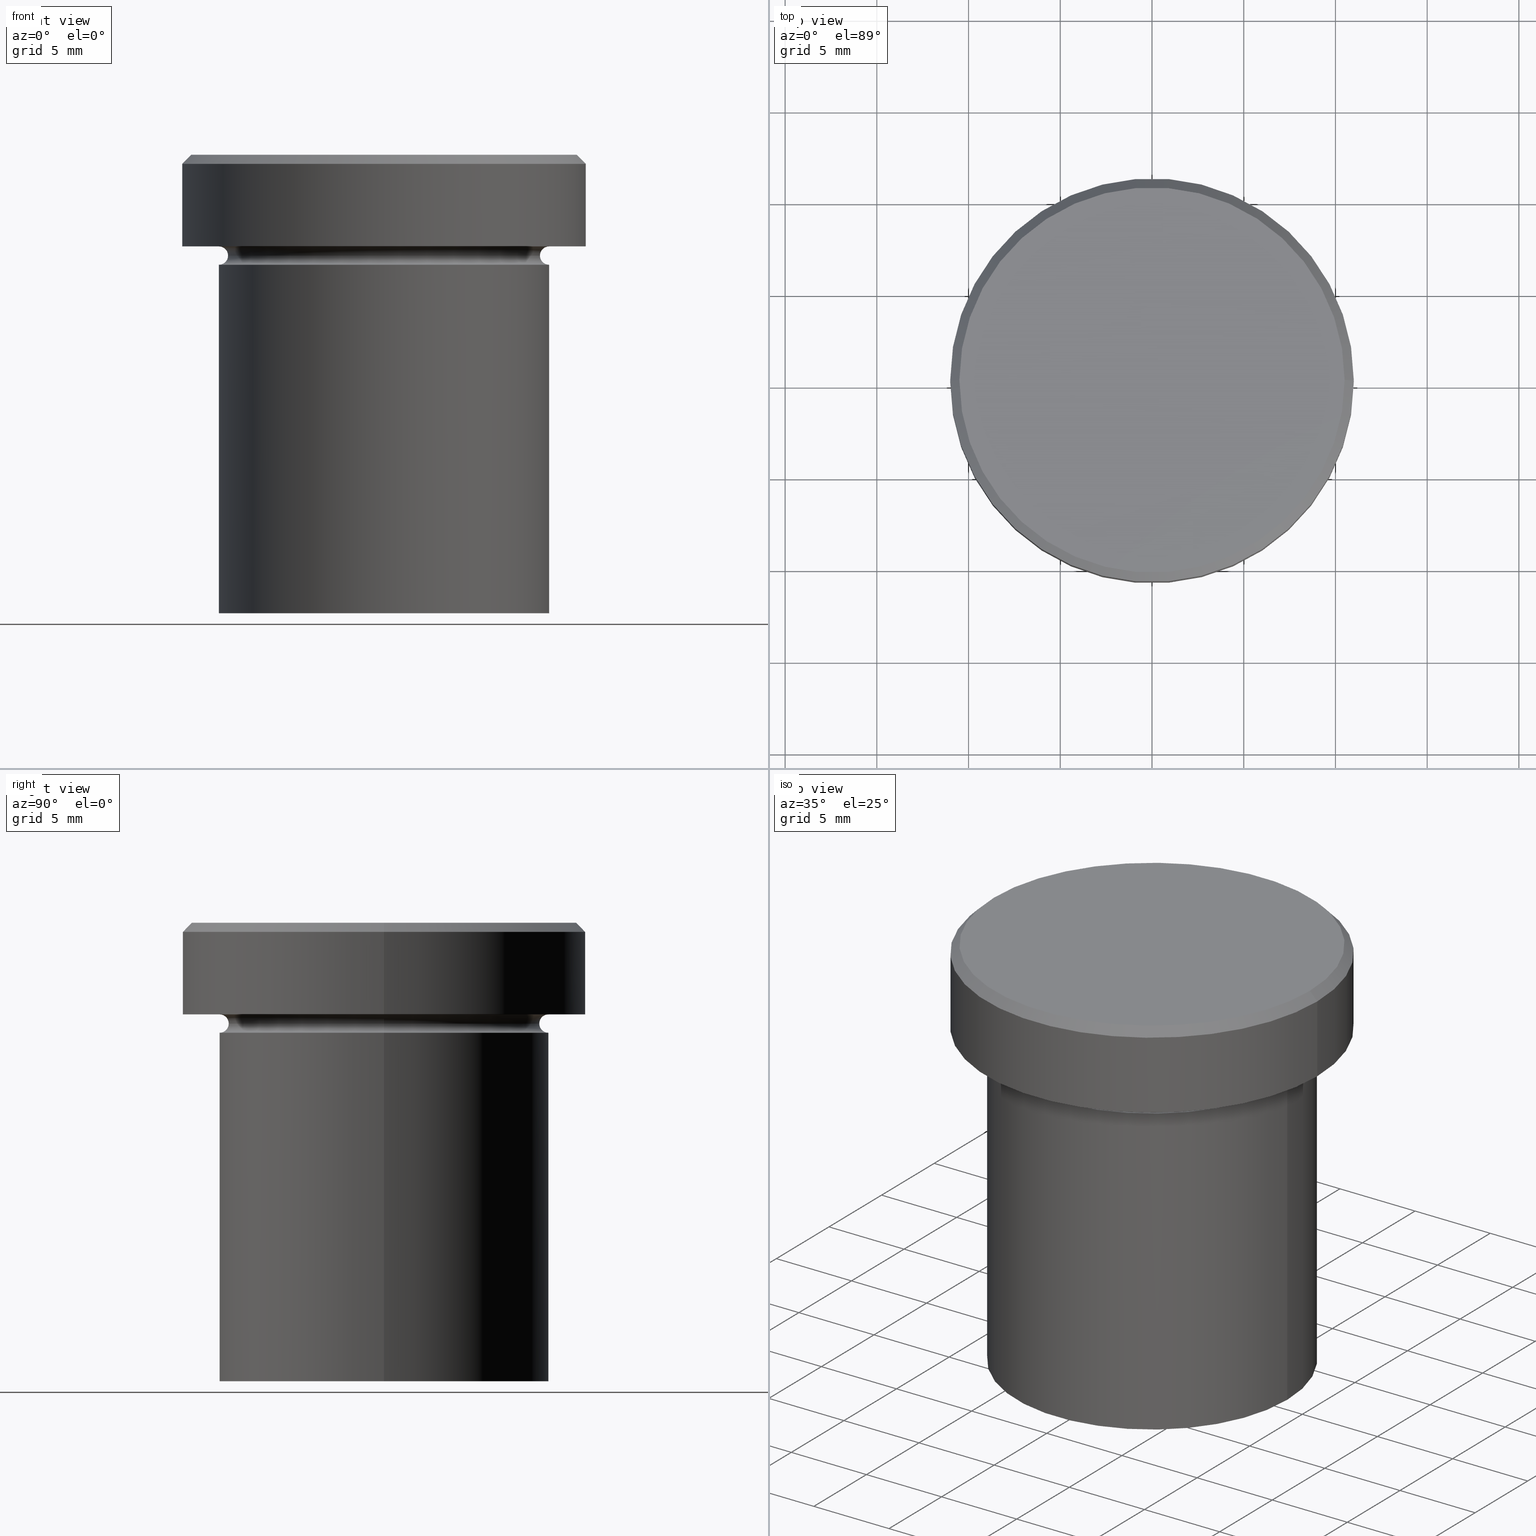
[diagram: canonical four-view strip — front | top / right | iso, engineering-drawing reading convention]
A machine part, canonical four-view strip (front | top / right | iso — engineering-drawing reading convention). The complete STEP part file that produces these views, byte-faithful:
ISO-10303-21;
HEADER;
FILE_DESCRIPTION (( 'STEP AP203' ),
    '1' );
FILE_NAME ('a1ef.STEP',
    '2024-01-02T21:51:22',
    ( '' ),
    ( '' ),
    'SwSTEP 2.0',
    'SolidWorks 2019',
    '' );
FILE_SCHEMA (( 'CONFIG_CONTROL_DESIGN' ));
ENDSEC;

DATA;
#1 = DIRECTION ( 'NONE',  ( 1.000000000000000000, 0.000000000000000000, 0.000000000000000000 ) ) ;
#2 = AXIS2_PLACEMENT_3D ( 'NONE', #397, #270, #399 ) ;
#3 = ORIENTED_EDGE ( 'NONE', *, *, #233, .T. ) ;
#4 = CYLINDRICAL_SURFACE ( 'NONE', #222, 9.000000000000000000 ) ;
#5 = DIRECTION ( 'NONE',  ( 0.000000000000000000, 0.000000000000000000, -1.000000000000000000 ) ) ;
#6 = DIRECTION ( 'NONE',  ( -0.000000000000000000, -0.000000000000000000, 1.000000000000000000 ) ) ;
#7 = EDGE_CURVE ( 'NONE', #39, #184, #30, .T. ) ;
#8 = AXIS2_PLACEMENT_3D ( 'NONE', #114, #392, #141 ) ;
#9 = LOCAL_TIME ( 22, 51, 22.00000000000000000, #245 ) ;
#10 = DIRECTION ( 'NONE',  ( -1.000000000000000000, 1.224646799147353454E-16, 0.000000000000000000 ) ) ;
#11 = LINE ( 'NONE', #144, #239 ) ;
#12 = EDGE_CURVE ( 'NONE', #157, #373, #400, .T. ) ;
#13 = PRODUCT_DEFINITION_SHAPE ( 'NONE', 'NONE',  #388 ) ;
#14 = CARTESIAN_POINT ( 'NONE',  ( 0.000000000000000000, 0.000000000000000000, -5.500000000000000000 ) ) ;
#15 = DIRECTION ( 'NONE',  ( -0.000000000000000000, -0.000000000000000000, 1.000000000000000000 ) ) ;
#16 = DIRECTION ( 'NONE',  ( 0.000000000000000000, 0.000000000000000000, -1.000000000000000000 ) ) ;
#17 = CARTESIAN_POINT ( 'NONE',  ( 0.000000000000000000, 0.000000000000000000, 0.000000000000000000 ) ) ;
#18 = COORDINATED_UNIVERSAL_TIME_OFFSET ( 1, 0, .AHEAD. ) ;
#19 = EDGE_CURVE ( 'NONE', #398, #39, #117, .T. ) ;
#20 = ORIENTED_EDGE ( 'NONE', *, *, #150, .F. ) ;
#21 = VERTEX_POINT ( 'NONE', #390 ) ;
#22 = DATE_AND_TIME ( #308, #9 ) ;
#23 =( LENGTH_UNIT ( ) NAMED_UNIT ( * ) SI_UNIT ( .MILLI., .METRE. ) );
#24 = CIRCLE ( 'NONE', #2, 11.00000000000000178 ) ;
#25 = FACE_OUTER_BOUND ( 'NONE', #359, .T. ) ;
#26 = AXIS2_PLACEMENT_3D ( 'NONE', #88, #292, #50 ) ;
#27 = TOROIDAL_SURFACE ( 'NONE', #302, 9.000000000000000000, 0.5000000000000000000 ) ;
#28 = EDGE_LOOP ( 'NONE', ( #63, #131, #327, #194 ) ) ;
#29 = APPROVAL_DATE_TIME ( #65, #31 ) ;
#30 = LINE ( 'NONE', #252, #153 ) ;
#31 = APPROVAL ( #251, 'NEUR�EN�' ) ;
#32 = VERTEX_POINT ( 'NONE', #200 ) ;
#33 = DIRECTION ( 'NONE',  ( -0.000000000000000000, -0.000000000000000000, 1.000000000000000000 ) ) ;
#34 = CC_DESIGN_APPROVAL ( #31, ( #46 ) ) ;
#35 = ORIENTED_EDGE ( 'NONE', *, *, #204, .T. ) ;
#36 = ORIENTED_EDGE ( 'NONE', *, *, #7, .T. ) ;
#37 = CARTESIAN_POINT ( 'NONE',  ( 0.000000000000000000, 0.000000000000000000, -0.4999999999999882871 ) ) ;
#38 = ORIENTED_EDGE ( 'NONE', *, *, #134, .F. ) ;
#39 = VERTEX_POINT ( 'NONE', #393 ) ;
#40 = ADVANCED_FACE ( 'NONE', ( #169 ), #4, .T. ) ;
#41 = ORIENTED_EDGE ( 'NONE', *, *, #93, .F. ) ;
#42 = DIRECTION ( 'NONE',  ( 1.000000000000000000, 0.000000000000000000, 0.000000000000000000 ) ) ;
#43 = AXIS2_PLACEMENT_3D ( 'NONE', #147, #339, #372 ) ;
#44 = DIRECTION ( 'NONE',  ( -0.000000000000000000, -0.000000000000000000, 1.000000000000000000 ) ) ;
#45 = CIRCLE ( 'NONE', #119, 0.5000000000000004441 ) ;
#46 = SECURITY_CLASSIFICATION ( '', '', #128 ) ;
#47 = APPROVAL_PERSON_ORGANIZATION ( #191, #31, #409 ) ;
#48 = CARTESIAN_POINT ( 'NONE',  ( 0.000000000000000000, 0.000000000000000000, 0.000000000000000000 ) ) ;
#49 = CARTESIAN_POINT ( 'NONE',  ( 0.000000000000000000, 0.000000000000000000, -5.000000000000000000 ) ) ;
#50 = DIRECTION ( 'NONE',  ( 1.000000000000000000, 0.000000000000000000, 0.000000000000000000 ) ) ;
#51 = CARTESIAN_POINT ( 'NONE',  ( -9.000000000000000000, 0.000000000000000000, -4.999999999999999112 ) ) ;
#52 = CIRCLE ( 'NONE', #342, 9.000000000000000000 ) ;
#53 = VERTEX_POINT ( 'NONE', #55 ) ;
#54 = CALENDAR_DATE ( 2024, 2, 1 ) ;
#55 = CARTESIAN_POINT ( 'NONE',  ( 9.000000000000000000, 0.000000000000000000, -6.000000000000000000 ) ) ;
#56 = CARTESIAN_POINT ( 'NONE',  ( 9.000000000000000000, 0.000000000000000000, -5.500000000000000000 ) ) ;
#57 = CC_DESIGN_PERSON_AND_ORGANIZATION_ASSIGNMENT ( #271, #179, ( #368 ) ) ;
#58 = APPROVAL_DATE_TIME ( #241, #116 ) ;
#59 = APPROVAL_STATUS ( 'not_yet_approved' ) ;
#60 = EDGE_LOOP ( 'NONE', ( #195, #3, #258, #324 ) ) ;
#61 = AXIS2_PLACEMENT_3D ( 'NONE', #138, #112, #235 ) ;
#62 = APPROVAL_PERSON_ORGANIZATION ( #120, #142, #126 ) ;
#63 = ORIENTED_EDGE ( 'NONE', *, *, #278, .F. ) ;
#64 = ADVANCED_FACE ( 'NONE', ( #364 ), #336, .T. ) ;
#65 = DATE_AND_TIME ( #66, #220 ) ;
#66 = CALENDAR_DATE ( 2024, 2, 1 ) ;
#67 = AXIS2_PLACEMENT_3D ( 'NONE', #234, #174, #297 ) ;
#68 = APPROVAL_PERSON_ORGANIZATION ( #123, #116, #242 ) ;
#69 = ORIENTED_EDGE ( 'NONE', *, *, #278, .T. ) ;
#70 = EDGE_CURVE ( 'NONE', #398, #21, #310, .T. ) ;
#71 = EDGE_LOOP ( 'NONE', ( #127, #217, #376, #100 ) ) ;
#72 = CARTESIAN_POINT ( 'NONE',  ( -9.000000000000000000, 1.102182119232617714E-15, -25.00000000000000000 ) ) ;
#73 = EDGE_LOOP ( 'NONE', ( #208, #78 ) ) ;
#74 = ORIENTED_EDGE ( 'NONE', *, *, #318, .T. ) ;
#75 = AXIS2_PLACEMENT_3D ( 'NONE', #118, #238, #363 ) ;
#76 = LINE ( 'NONE', #171, #307 ) ;
#77 = EDGE_CURVE ( 'NONE', #404, #373, #254, .T. ) ;
#78 = ORIENTED_EDGE ( 'NONE', *, *, #233, .F. ) ;
#79 = DIRECTION ( 'NONE',  ( 1.000000000000000000, 0.000000000000000000, 0.000000000000000000 ) ) ;
#80 = EDGE_LOOP ( 'NONE', ( #105, #69, #346, #20 ) ) ;
#81 = CARTESIAN_POINT ( 'NONE',  ( 8.499999999999998224, 0.000000000000000000, -5.500000000000000000 ) ) ;
#82 = DIRECTION ( 'NONE',  ( -1.000000000000000000, 0.000000000000000000, 0.000000000000000000 ) ) ;
#83 = DIRECTION ( 'NONE',  ( 0.000000000000000000, -1.000000000000000000, 0.000000000000000000 ) ) ;
#84 = VERTEX_POINT ( 'NONE', #107 ) ;
#85 = AXIS2_PLACEMENT_3D ( 'NONE', #269, #367, #90 ) ;
#86 = VECTOR ( 'NONE', #121, 1000.000000000000114 ) ;
#87 = DIRECTION ( 'NONE',  ( 1.000000000000000000, 0.000000000000000000, 0.000000000000000000 ) ) ;
#88 = CARTESIAN_POINT ( 'NONE',  ( 0.000000000000000000, 0.000000000000000000, -5.500000000000000000 ) ) ;
#89 = CARTESIAN_POINT ( 'NONE',  ( 0.000000000000000000, 0.000000000000000000, -5.500000000000000000 ) ) ;
#90 = DIRECTION ( 'NONE',  ( -1.000000000000000000, 0.000000000000000000, 0.000000000000000000 ) ) ;
#91 = DIRECTION ( 'NONE',  ( 0.000000000000000000, 0.000000000000000000, -1.000000000000000000 ) ) ;
#92 = TOROIDAL_SURFACE ( 'NONE', #262, 9.000000000000000000, 0.5000000000000000000 ) ;
#93 = EDGE_CURVE ( 'NONE', #32, #21, #76, .T. ) ;
#94 = ORGANIZATION ( 'NEUR�EN�', 'NEUR�EN�', '' ) ;
#95 = CALENDAR_DATE ( 2024, 2, 1 ) ;
#96 = DIRECTION ( 'NONE',  ( 1.000000000000000000, 0.000000000000000000, 0.000000000000000000 ) ) ;
#97 = VERTEX_POINT ( 'NONE', #72 ) ;
#98 = PERSON_AND_ORGANIZATION_ROLE ( 'creator' ) ;
#99 = EDGE_CURVE ( 'NONE', #53, #347, #197, .T. ) ;
#100 = ORIENTED_EDGE ( 'NONE', *, *, #7, .F. ) ;
#101 = CARTESIAN_POINT ( 'NONE',  ( 9.000000000000000000, 1.102182119232617714E-15, -5.500000000000000000 ) ) ;
#102 = EDGE_CURVE ( 'NONE', #84, #53, #132, .T. ) ;
#103 = AXIS2_PLACEMENT_3D ( 'NONE', #228, #110, #291 ) ;
#104 = LOCAL_TIME ( 22, 51, 22.00000000000000000, #18 ) ;
#105 = ORIENTED_EDGE ( 'NONE', *, *, #382, .F. ) ;
#106 = ORIENTED_EDGE ( 'NONE', *, *, #380, .F. ) ;
#107 = CARTESIAN_POINT ( 'NONE',  ( 9.000000000000000000, 0.000000000000000000, -25.00000000000000000 ) ) ;
#108 = FACE_OUTER_BOUND ( 'NONE', #386, .T. ) ;
#109 = AXIS2_PLACEMENT_3D ( 'NONE', #199, #264, #333 ) ;
#110 = DIRECTION ( 'NONE',  ( -0.000000000000000000, -0.000000000000000000, 1.000000000000000000 ) ) ;
#111 = FACE_OUTER_BOUND ( 'NONE', #80, .T. ) ;
#112 = DIRECTION ( 'NONE',  ( -0.000000000000000000, -0.000000000000000000, 1.000000000000000000 ) ) ;
#113 = ORIENTED_EDGE ( 'NONE', *, *, #374, .F. ) ;
#114 = CARTESIAN_POINT ( 'NONE',  ( 0.000000000000000000, 11.00000000000000000, -5.000000000000000000 ) ) ;
#115 = ORIENTED_EDGE ( 'NONE', *, *, #348, .T. ) ;
#116 = APPROVAL ( #59, 'NEUR�EN�' ) ;
#117 = CIRCLE ( 'NONE', #377, 10.50000000000001243 ) ;
#118 = CARTESIAN_POINT ( 'NONE',  ( 0.000000000000000000, 0.000000000000000000, -5.500000000000000000 ) ) ;
#119 = AXIS2_PLACEMENT_3D ( 'NONE', #56, #83, #305 ) ;
#120 = PERSON_AND_ORGANIZATION ( #391, #94 ) ;
#121 = DIRECTION ( 'NONE',  ( 0.7071067811865474617, 8.659560562354932858E-17, -0.7071067811865474617 ) ) ;
#122 = UNCERTAINTY_MEASURE_WITH_UNIT (LENGTH_MEASURE( 1.000000000000000082E-05 ), #23, 'distance_accuracy_value', 'NONE');
#123 = PERSON_AND_ORGANIZATION ( #391, #94 ) ;
#124 = ADVANCED_FACE ( 'NONE', ( #25 ), #143, .T. ) ;
#125 = DIRECTION ( 'NONE',  ( 1.000000000000000000, 0.000000000000000000, 0.000000000000000000 ) ) ;
#126 = APPROVAL_ROLE ( '' ) ;
#127 = ORIENTED_EDGE ( 'NONE', *, *, #19, .F. ) ;
#128 = SECURITY_CLASSIFICATION_LEVEL ( 'unclassified' ) ;
#129 = ORIENTED_EDGE ( 'NONE', *, *, #284, .F. ) ;
#130 = CIRCLE ( 'NONE', #296, 11.00000000000000178 ) ;
#131 = ORIENTED_EDGE ( 'NONE', *, *, #321, .F. ) ;
#132 = LINE ( 'NONE', #255, #340 ) ;
#133 = AXIS2_PLACEMENT_3D ( 'NONE', #201, #6, #328 ) ;
#134 = EDGE_CURVE ( 'NONE', #21, #184, #24, .T. ) ;
#135 = ORIENTED_EDGE ( 'NONE', *, *, #70, .F. ) ;
#136 = CARTESIAN_POINT ( 'NONE',  ( 0.000000000000000000, 0.000000000000000000, 0.000000000000000000 ) ) ;
#137 = DIRECTION ( 'NONE',  ( 1.000000000000000000, 0.000000000000000000, 0.000000000000000000 ) ) ;
#138 = CARTESIAN_POINT ( 'NONE',  ( 0.000000000000000000, 0.000000000000000000, -6.000000000000000000 ) ) ;
#139 = PRODUCT_DEFINITION_FORMATION_WITH_SPECIFIED_SOURCE ( 'LIBOVOLN�', '', #368, .NOT_KNOWN. ) ;
#140 = ORIENTED_EDGE ( 'NONE', *, *, #12, .T. ) ;
#141 = DIRECTION ( 'NONE',  ( -1.000000000000000000, 0.000000000000000000, -0.000000000000000000 ) ) ;
#142 = APPROVAL ( #401, 'NEUR�EN�' ) ;
#143 = CYLINDRICAL_SURFACE ( 'NONE', #281, 11.00000000000000178 ) ;
#144 = CARTESIAN_POINT ( 'NONE',  ( -11.00000000000000178, 1.347111479062088602E-15, 0.000000000000000000 ) ) ;
#145 = AXIS2_PLACEMENT_3D ( 'NONE', #101, #165, #354 ) ;
#146 = FACE_BOUND ( 'NONE', #250, .T. ) ;
#147 = CARTESIAN_POINT ( 'NONE',  ( 0.000000000000000000, 9.000000000000000000, -25.00000000000000000 ) ) ;
#148 = ORIENTED_EDGE ( 'NONE', *, *, #380, .T. ) ;
#149 = CARTESIAN_POINT ( 'NONE',  ( 10.50000000000001243, 1.285879139104722408E-15, 0.000000000000000000 ) ) ;
#150 = EDGE_CURVE ( 'NONE', #157, #53, #45, .T. ) ;
#151 = PERSON_AND_ORGANIZATION_ROLE ( 'creator' ) ;
#152 = MECHANICAL_CONTEXT ( 'NONE', #192, 'mechanical' ) ;
#153 = VECTOR ( 'NONE', #379, 1000.000000000000114 ) ;
#154 = ORIENTED_EDGE ( 'NONE', *, *, #99, .F. ) ;
#155 = PERSON_AND_ORGANIZATION ( #391, #94 ) ;
#156 = EDGE_CURVE ( 'NONE', #347, #53, #230, .T. ) ;
#157 = VERTEX_POINT ( 'NONE', #81 ) ;
#158 = APPLICATION_PROTOCOL_DEFINITION ( 'international standard', 'config_control_design', 1994, #313 ) ;
#159 = CARTESIAN_POINT ( 'NONE',  ( -11.00000000000000178, 1.347111479062088602E-15, -0.4999999999999882871 ) ) ;
#160 = ORIENTED_EDGE ( 'NONE', *, *, #321, .T. ) ;
#161 = TOROIDAL_SURFACE ( 'NONE', #26, 9.000000000000000000, 0.5000000000000000000 ) ;
#162 = AXIS2_PLACEMENT_3D ( 'NONE', #190, #183, #216 ) ;
#163 = ORIENTED_EDGE ( 'NONE', *, *, #382, .T. ) ;
#164 = ORIENTED_EDGE ( 'NONE', *, *, #204, .F. ) ;
#165 = DIRECTION ( 'NONE',  ( -1.224646799147353207E-16, 1.000000000000000000, 0.000000000000000000 ) ) ;
#166 = EDGE_CURVE ( 'NONE', #274, #32, #224, .T. ) ;
#167 = CIRCLE ( 'NONE', #394, 0.5000000000000004441 ) ;
#168 = DIRECTION ( 'NONE',  ( 1.000000000000000000, 0.000000000000000000, 0.000000000000000000 ) ) ;
#169 = FACE_OUTER_BOUND ( 'NONE', #312, .T. ) ;
#170 = CARTESIAN_POINT ( 'NONE',  ( -9.000000000000000000, 1.102182119232617714E-15, 0.000000000000000000 ) ) ;
#171 = CARTESIAN_POINT ( 'NONE',  ( 11.00000000000000178, 0.000000000000000000, 0.000000000000000000 ) ) ;
#172 = CARTESIAN_POINT ( 'NONE',  ( -9.000000000000000000, 1.102182119232617714E-15, -6.000000000000000000 ) ) ;
#173 = CLOSED_SHELL ( 'NONE', ( #341, #408, #311, #40, #124, #64, #303, #352, #290, #175, #261, #272, #244 ) ) ;
#174 = DIRECTION ( 'NONE',  ( -0.000000000000000000, -0.000000000000000000, 1.000000000000000000 ) ) ;
#175 = ADVANCED_FACE ( 'NONE', ( #365 ), #182, .T. ) ;
#176 = CARTESIAN_POINT ( 'NONE',  ( 0.000000000000000000, 0.000000000000000000, 0.000000000000000000 ) ) ;
#177 = DIRECTION ( 'NONE',  ( 0.000000000000000000, 0.000000000000000000, -1.000000000000000000 ) ) ;
#178 = CARTESIAN_POINT ( 'NONE',  ( 0.000000000000000000, 0.000000000000000000, 0.000000000000000000 ) ) ;
#179 = PERSON_AND_ORGANIZATION_ROLE ( 'design_owner' ) ;
#180 = CIRCLE ( 'NONE', #378, 11.00000000000000000 ) ;
#181 = PERSON_AND_ORGANIZATION ( #391, #94 ) ;
#182 = CYLINDRICAL_SURFACE ( 'NONE', #287, 9.000000000000000000 ) ;
#183 = DIRECTION ( 'NONE',  ( 0.000000000000000000, 0.000000000000000000, 1.000000000000000000 ) ) ;
#184 = VERTEX_POINT ( 'NONE', #159 ) ;
#185 = PERSON_AND_ORGANIZATION ( #391, #94 ) ;
#186 = CC_DESIGN_DATE_AND_TIME_ASSIGNMENT ( #366, #319, ( #46 ) ) ;
#187 = VECTOR ( 'NONE', #44, 1000.000000000000000 ) ;
#188 = ORIENTED_EDGE ( 'NONE', *, *, #374, .T. ) ;
#189 = DIRECTION ( 'NONE',  ( -0.000000000000000000, -0.000000000000000000, 1.000000000000000000 ) ) ;
#190 = CARTESIAN_POINT ( 'NONE',  ( 0.000000000000000000, 0.000000000000000000, 0.000000000000000000 ) ) ;
#191 = PERSON_AND_ORGANIZATION ( #391, #94 ) ;
#192 = APPLICATION_CONTEXT ( 'configuration controlled 3d designs of mechanical parts and assemblies' ) ;
#193 = CIRCLE ( 'NONE', #67, 9.000000000000000000 ) ;
#194 = ORIENTED_EDGE ( 'NONE', *, *, #99, .T. ) ;
#195 = ORIENTED_EDGE ( 'NONE', *, *, #348, .F. ) ;
#196 = ORIENTED_EDGE ( 'NONE', *, *, #166, .F. ) ;
#197 = CIRCLE ( 'NONE', #301, 9.000000000000000000 ) ;
#198 = CIRCLE ( 'NONE', #75, 8.499999999999998224 ) ;
#199 = CARTESIAN_POINT ( 'NONE',  ( 0.000000000000000000, 0.000000000000000000, -5.500000000000000000 ) ) ;
#200 = CARTESIAN_POINT ( 'NONE',  ( 11.00000000000000000, 0.000000000000000000, -5.000000000000000000 ) ) ;
#201 = CARTESIAN_POINT ( 'NONE',  ( 0.000000000000000000, 0.000000000000000000, -5.500000000000000000 ) ) ;
#202 = ORIENTED_EDGE ( 'NONE', *, *, #237, .T. ) ;
#203 = DESIGN_CONTEXT ( 'detailed design', #313, 'design' ) ;
#204 = EDGE_CURVE ( 'NONE', #277, #404, #167, .T. ) ;
#205 = ORIENTED_EDGE ( 'NONE', *, *, #166, .T. ) ;
#206 = CARTESIAN_POINT ( 'NONE',  ( -11.00000000000000000, 1.347111479062088602E-15, -5.000000000000000000 ) ) ;
#207 = ORIENTED_EDGE ( 'NONE', *, *, #93, .T. ) ;
#208 = ORIENTED_EDGE ( 'NONE', *, *, #237, .F. ) ;
#209 = DIRECTION ( 'NONE',  ( 0.000000000000000000, 0.000000000000000000, -1.000000000000000000 ) ) ;
#210 = CC_DESIGN_APPROVAL ( #116, ( #388 ) ) ;
#211 = FACE_OUTER_BOUND ( 'NONE', #286, .T. ) ;
#212 = DIRECTION ( 'NONE',  ( 0.000000000000000000, 0.000000000000000000, -1.000000000000000000 ) ) ;
#213 = DATE_AND_TIME ( #54, #231 ) ;
#214 = PERSON_AND_ORGANIZATION ( #391, #94 ) ;
#215 = CC_DESIGN_DATE_AND_TIME_ASSIGNMENT ( #213, #306, ( #388 ) ) ;
#216 = DIRECTION ( 'NONE',  ( 1.000000000000000000, 0.000000000000000000, 0.000000000000000000 ) ) ;
#217 = ORIENTED_EDGE ( 'NONE', *, *, #70, .T. ) ;
#218 = DIRECTION ( 'NONE',  ( -1.000000000000000000, 0.000000000000000000, 0.000000000000000000 ) ) ;
#219 = CIRCLE ( 'NONE', #103, 9.000000000000000000 ) ;
#220 = LOCAL_TIME ( 22, 51, 22.00000000000000000, #350 ) ;
#221 = ORIENTED_EDGE ( 'NONE', *, *, #77, .F. ) ;
#222 = AXIS2_PLACEMENT_3D ( 'NONE', #289, #309, #96 ) ;
#223 = CARTESIAN_POINT ( 'NONE',  ( 0.000000000000000000, 0.000000000000000000, -6.000000000000000000 ) ) ;
#224 = CIRCLE ( 'NONE', #295, 11.00000000000000000 ) ;
#225 = CIRCLE ( 'NONE', #395, 10.50000000000001243 ) ;
#226 = DIRECTION ( 'NONE',  ( -1.000000000000000000, 0.000000000000000000, 0.000000000000000000 ) ) ;
#227 = EDGE_LOOP ( 'NONE', ( #259, #343 ) ) ;
#228 = CARTESIAN_POINT ( 'NONE',  ( 0.000000000000000000, 0.000000000000000000, -25.00000000000000000 ) ) ;
#229 = FACE_OUTER_BOUND ( 'NONE', #227, .T. ) ;
#230 = CIRCLE ( 'NONE', #61, 9.000000000000000000 ) ;
#231 = LOCAL_TIME ( 22, 51, 22.00000000000000000, #314 ) ;
#232 = DIRECTION ( 'NONE',  ( -0.000000000000000000, -0.000000000000000000, 1.000000000000000000 ) ) ;
#233 = EDGE_CURVE ( 'NONE', #97, #84, #52, .T. ) ;
#234 = CARTESIAN_POINT ( 'NONE',  ( 0.000000000000000000, 0.000000000000000000, -5.000000000000000000 ) ) ;
#235 = DIRECTION ( 'NONE',  ( 1.000000000000000000, 0.000000000000000000, 0.000000000000000000 ) ) ;
#236 = LINE ( 'NONE', #170, #187 ) ;
#237 = EDGE_CURVE ( 'NONE', #84, #97, #219, .T. ) ;
#238 = DIRECTION ( 'NONE',  ( -0.000000000000000000, -0.000000000000000000, 1.000000000000000000 ) ) ;
#239 = VECTOR ( 'NONE', #266, 1000.000000000000000 ) ;
#240 = CALENDAR_DATE ( 2024, 2, 1 ) ;
#241 = DATE_AND_TIME ( #95, #104 ) ;
#242 = APPROVAL_ROLE ( '' ) ;
#243 = CIRCLE ( 'NONE', #316, 0.5000000000000004441 ) ;
#244 = ADVANCED_FACE ( 'NONE', ( #263 ), #351, .T. ) ;
#245 = COORDINATED_UNIVERSAL_TIME_OFFSET ( 1, 0, .AHEAD. ) ;
#246 = ORIENTED_EDGE ( 'NONE', *, *, #12, .F. ) ;
#247 = ORIENTED_EDGE ( 'NONE', *, *, #77, .T. ) ;
#248 = DIRECTION ( 'NONE',  ( -0.000000000000000000, -0.000000000000000000, 1.000000000000000000 ) ) ;
#249 = PERSON_AND_ORGANIZATION_ROLE ( 'classification_officer' ) ;
#250 = EDGE_LOOP ( 'NONE', ( #247, #283 ) ) ;
#251 = APPROVAL_STATUS ( 'not_yet_approved' ) ;
#252 = CARTESIAN_POINT ( 'NONE',  ( -10.50000000000001243, 0.000000000000000000, 0.000000000000000000 ) ) ;
#253 = DIRECTION ( 'NONE',  ( -0.000000000000000000, -0.000000000000000000, 1.000000000000000000 ) ) ;
#254 = CIRCLE ( 'NONE', #85, 9.000000000000000000 ) ;
#255 = CARTESIAN_POINT ( 'NONE',  ( 9.000000000000000000, 0.000000000000000000, 0.000000000000000000 ) ) ;
#256 = DIRECTION ( 'NONE',  ( -0.000000000000000000, -0.000000000000000000, 1.000000000000000000 ) ) ;
#257 = CC_DESIGN_PERSON_AND_ORGANIZATION_ASSIGNMENT ( #181, #249, ( #46 ) ) ;
#258 = ORIENTED_EDGE ( 'NONE', *, *, #102, .T. ) ;
#259 = ORIENTED_EDGE ( 'NONE', *, *, #349, .T. ) ;
#260 = DIRECTION ( 'NONE',  ( -0.000000000000000000, -0.000000000000000000, 1.000000000000000000 ) ) ;
#261 = ADVANCED_FACE ( 'NONE', ( #273 ), #161, .F. ) ;
#262 = AXIS2_PLACEMENT_3D ( 'NONE', #14, #177, #323 ) ;
#263 = FACE_OUTER_BOUND ( 'NONE', #325, .T. ) ;
#264 = DIRECTION ( 'NONE',  ( -0.000000000000000000, -0.000000000000000000, 1.000000000000000000 ) ) ;
#265 = DIRECTION ( 'NONE',  ( 1.000000000000000000, 0.000000000000000000, 0.000000000000000000 ) ) ;
#266 = DIRECTION ( 'NONE',  ( -0.000000000000000000, -0.000000000000000000, 1.000000000000000000 ) ) ;
#267 = DIRECTION ( 'NONE',  ( -0.000000000000000000, -0.000000000000000000, 1.000000000000000000 ) ) ;
#268 = PLANE ( 'NONE',  #8 ) ;
#269 = CARTESIAN_POINT ( 'NONE',  ( 0.000000000000000000, 0.000000000000000000, -5.000000000000000000 ) ) ;
#270 = DIRECTION ( 'NONE',  ( 0.000000000000000000, 0.000000000000000000, -1.000000000000000000 ) ) ;
#271 = PERSON_AND_ORGANIZATION ( #391, #94 ) ;
#272 = ADVANCED_FACE ( 'NONE', ( #211 ), #92, .F. ) ;
#273 = FACE_OUTER_BOUND ( 'NONE', #28, .T. ) ;
#274 = VERTEX_POINT ( 'NONE', #206 ) ;
#275 = ORIENTED_EDGE ( 'NONE', *, *, #102, .F. ) ;
#276 =( NAMED_UNIT ( * ) PLANE_ANGLE_UNIT ( ) SI_UNIT ( $, .RADIAN. ) );
#277 = VERTEX_POINT ( 'NONE', #300 ) ;
#278 = EDGE_CURVE ( 'NONE', #277, #347, #243, .T. ) ;
#279 =( NAMED_UNIT ( * ) SI_UNIT ( $, .STERADIAN. ) SOLID_ANGLE_UNIT ( ) );
#280 = CARTESIAN_POINT ( 'NONE',  ( -9.000000000000000000, 0.000000000000000000, -5.500000000000000000 ) ) ;
#281 = AXIS2_PLACEMENT_3D ( 'NONE', #178, #15, #299 ) ;
#282 = SHAPE_DEFINITION_REPRESENTATION ( #13, #304 ) ;
#283 = ORIENTED_EDGE ( 'NONE', *, *, #284, .T. ) ;
#284 = EDGE_CURVE ( 'NONE', #373, #404, #193, .T. ) ;
#285 = DIRECTION ( 'NONE',  ( -0.000000000000000000, -0.000000000000000000, 1.000000000000000000 ) ) ;
#286 = EDGE_LOOP ( 'NONE', ( #246, #160, #35, #129 ) ) ;
#287 = AXIS2_PLACEMENT_3D ( 'NONE', #17, #256, #315 ) ;
#288 = LOCAL_TIME ( 22, 51, 22.00000000000000000, #375 ) ;
#289 = CARTESIAN_POINT ( 'NONE',  ( 0.000000000000000000, 0.000000000000000000, 0.000000000000000000 ) ) ;
#290 = ADVANCED_FACE ( 'NONE', ( #146, #396 ), #268, .T. ) ;
#291 = DIRECTION ( 'NONE',  ( 1.000000000000000000, 0.000000000000000000, 0.000000000000000000 ) ) ;
#292 = DIRECTION ( 'NONE',  ( -0.000000000000000000, -0.000000000000000000, 1.000000000000000000 ) ) ;
#293 = CARTESIAN_POINT ( 'NONE',  ( 9.000000000000000000, 1.102182119232617714E-15, -4.999999999999999112 ) ) ;
#294 = CARTESIAN_POINT ( 'NONE',  ( 0.000000000000000000, 0.000000000000000000, 0.000000000000000000 ) ) ;
#295 = AXIS2_PLACEMENT_3D ( 'NONE', #405, #248, #125 ) ;
#296 = AXIS2_PLACEMENT_3D ( 'NONE', #37, #5, #326 ) ;
#297 = DIRECTION ( 'NONE',  ( -1.000000000000000000, 0.000000000000000000, 0.000000000000000000 ) ) ;
#298 = DIRECTION ( 'NONE',  ( -0.000000000000000000, -0.000000000000000000, 1.000000000000000000 ) ) ;
#299 = DIRECTION ( 'NONE',  ( 1.000000000000000000, 0.000000000000000000, 0.000000000000000000 ) ) ;
#300 = CARTESIAN_POINT ( 'NONE',  ( -8.499999999999998224, 1.071565949253933927E-15, -5.500000000000000000 ) ) ;
#301 = AXIS2_PLACEMENT_3D ( 'NONE', #223, #285, #1 ) ;
#302 = AXIS2_PLACEMENT_3D ( 'NONE', #89, #91, #218 ) ;
#303 = ADVANCED_FACE ( 'NONE', ( #229 ), #353, .T. ) ;
#304 = ADVANCED_BREP_SHAPE_REPRESENTATION ( 'a1ef', ( #330, #162 ), #381 ) ;
#305 = DIRECTION ( 'NONE',  ( 0.000000000000000000, 0.000000000000000000, -1.000000000000000000 ) ) ;
#306 = DATE_TIME_ROLE ( 'creation_date' ) ;
#307 = VECTOR ( 'NONE', #253, 1000.000000000000000 ) ;
#308 = CALENDAR_DATE ( 2024, 2, 1 ) ;
#309 = DIRECTION ( 'NONE',  ( -0.000000000000000000, -0.000000000000000000, 1.000000000000000000 ) ) ;
#310 = LINE ( 'NONE', #149, #86 ) ;
#311 = ADVANCED_FACE ( 'NONE', ( #111 ), #344, .F. ) ;
#312 = EDGE_LOOP ( 'NONE', ( #202, #115, #154, #275 ) ) ;
#313 = APPLICATION_CONTEXT ( 'configuration controlled 3d designs of mechanical parts and assemblies' ) ;
#314 = COORDINATED_UNIVERSAL_TIME_OFFSET ( 1, 0, .AHEAD. ) ;
#315 = DIRECTION ( 'NONE',  ( 1.000000000000000000, 0.000000000000000000, 0.000000000000000000 ) ) ;
#316 = AXIS2_PLACEMENT_3D ( 'NONE', #357, #335, #10 ) ;
#317 = CC_DESIGN_APPROVAL ( #142, ( #139 ) ) ;
#318 = EDGE_CURVE ( 'NONE', #184, #21, #130, .T. ) ;
#319 = DATE_TIME_ROLE ( 'classification_date' ) ;
#320 = CARTESIAN_POINT ( 'NONE',  ( 0.000000000000000000, 0.000000000000000000, -25.00000000000000000 ) ) ;
#321 = EDGE_CURVE ( 'NONE', #157, #277, #362, .T. ) ;
#322 = ORIENTED_EDGE ( 'NONE', *, *, #134, .T. ) ;
#323 = DIRECTION ( 'NONE',  ( -1.000000000000000000, 0.000000000000000000, 0.000000000000000000 ) ) ;
#324 = ORIENTED_EDGE ( 'NONE', *, *, #156, .F. ) ;
#325 = EDGE_LOOP ( 'NONE', ( #135, #383, #36, #38 ) ) ;
#326 = DIRECTION ( 'NONE',  ( 1.000000000000000000, 0.000000000000000000, 0.000000000000000000 ) ) ;
#327 = ORIENTED_EDGE ( 'NONE', *, *, #150, .T. ) ;
#328 = DIRECTION ( 'NONE',  ( 1.000000000000000000, 0.000000000000000000, 0.000000000000000000 ) ) ;
#329 = AXIS2_PLACEMENT_3D ( 'NONE', #176, #387, #42 ) ;
#330 = MANIFOLD_SOLID_BREP ( 'Zkosen�1', #173 ) ;
#331 = AXIS2_PLACEMENT_3D ( 'NONE', #358, #209, #82 ) ;
#332 = EDGE_LOOP ( 'NONE', ( #163, #140, #221, #164 ) ) ;
#333 = DIRECTION ( 'NONE',  ( 1.000000000000000000, 0.000000000000000000, 0.000000000000000000 ) ) ;
#334 = CC_DESIGN_PERSON_AND_ORGANIZATION_ASSIGNMENT ( #214, #406, ( #139 ) ) ;
#335 = DIRECTION ( 'NONE',  ( 1.224646799147353207E-16, 1.000000000000000000, 0.000000000000000000 ) ) ;
#336 = PLANE ( 'NONE',  #43 ) ;
#337 = PRODUCT_RELATED_PRODUCT_CATEGORY ( 'detail', '', ( #368 ) ) ;
#338 = APPROVAL_DATE_TIME ( #22, #142 ) ;
#339 = DIRECTION ( 'NONE',  ( 0.000000000000000000, 0.000000000000000000, -1.000000000000000000 ) ) ;
#340 = VECTOR ( 'NONE', #189, 1000.000000000000000 ) ;
#341 = ADVANCED_FACE ( 'NONE', ( #389 ), #402, .T. ) ;
#342 = AXIS2_PLACEMENT_3D ( 'NONE', #320, #33, #168 ) ;
#343 = ORIENTED_EDGE ( 'NONE', *, *, #19, .T. ) ;
#344 = TOROIDAL_SURFACE ( 'NONE', #133, 9.000000000000000000, 0.5000000000000000000 ) ;
#345 = APPLICATION_PROTOCOL_DEFINITION ( 'international standard', 'config_control_design', 1994, #192 ) ;
#346 = ORIENTED_EDGE ( 'NONE', *, *, #156, .T. ) ;
#347 = VERTEX_POINT ( 'NONE', #172 ) ;
#348 = EDGE_CURVE ( 'NONE', #97, #347, #236, .T. ) ;
#349 = EDGE_CURVE ( 'NONE', #39, #398, #225, .T. ) ;
#350 = COORDINATED_UNIVERSAL_TIME_OFFSET ( 1, 0, .AHEAD. ) ;
#351 = CONICAL_SURFACE ( 'NONE', #385, 10.50000000000001243, 0.7853981633974482790 ) ;
#352 = ADVANCED_FACE ( 'NONE', ( #108 ), #384, .T. ) ;
#353 = PLANE ( 'NONE',  #329 ) ;
#354 = DIRECTION ( 'NONE',  ( -1.000000000000000000, -1.224646799147353454E-16, 0.000000000000000000 ) ) ;
#355 = AXIS2_PLACEMENT_3D ( 'NONE', #361, #232, #87 ) ;
#356 = EDGE_LOOP ( 'NONE', ( #113, #196 ) ) ;
#357 = CARTESIAN_POINT ( 'NONE',  ( -9.000000000000000000, 1.102182119232617714E-15, -5.500000000000000000 ) ) ;
#358 = CARTESIAN_POINT ( 'NONE',  ( 0.000000000000000000, 0.000000000000000000, 0.000000000000000000 ) ) ;
#359 = EDGE_LOOP ( 'NONE', ( #188, #148, #74, #41 ) ) ;
#360 = CC_DESIGN_PERSON_AND_ORGANIZATION_ASSIGNMENT ( #185, #98, ( #388 ) ) ;
#361 = CARTESIAN_POINT ( 'NONE',  ( 0.000000000000000000, 0.000000000000000000, 0.000000000000000000 ) ) ;
#362 = CIRCLE ( 'NONE', #109, 8.499999999999998224 ) ;
#363 = DIRECTION ( 'NONE',  ( 1.000000000000000000, 0.000000000000000000, 0.000000000000000000 ) ) ;
#364 = FACE_OUTER_BOUND ( 'NONE', #73, .T. ) ;
#365 = FACE_OUTER_BOUND ( 'NONE', #60, .T. ) ;
#366 = DATE_AND_TIME ( #240, #288 ) ;
#367 = DIRECTION ( 'NONE',  ( -0.000000000000000000, -0.000000000000000000, 1.000000000000000000 ) ) ;
#368 = PRODUCT ( 'a1ef', 'a1ef', '', ( #152 ) ) ;
#369 = FACE_OUTER_BOUND ( 'NONE', #332, .T. ) ;
#370 = CC_DESIGN_SECURITY_CLASSIFICATION ( #46, ( #139 ) ) ;
#371 = CARTESIAN_POINT ( 'NONE',  ( 10.50000000000001243, 1.316495309083405604E-15, 0.000000000000000000 ) ) ;
#372 = DIRECTION ( 'NONE',  ( -1.000000000000000000, 0.000000000000000000, -0.000000000000000000 ) ) ;
#373 = VERTEX_POINT ( 'NONE', #293 ) ;
#374 = EDGE_CURVE ( 'NONE', #32, #274, #180, .T. ) ;
#375 = COORDINATED_UNIVERSAL_TIME_OFFSET ( 1, 0, .AHEAD. ) ;
#376 = ORIENTED_EDGE ( 'NONE', *, *, #318, .F. ) ;
#377 = AXIS2_PLACEMENT_3D ( 'NONE', #294, #267, #265 ) ;
#378 = AXIS2_PLACEMENT_3D ( 'NONE', #49, #298, #137 ) ;
#379 = DIRECTION ( 'NONE',  ( -0.7071067811865474617, 0.000000000000000000, -0.7071067811865474617 ) ) ;
#380 = EDGE_CURVE ( 'NONE', #274, #184, #11, .T. ) ;
#381 =( GEOMETRIC_REPRESENTATION_CONTEXT ( 3 ) GLOBAL_UNCERTAINTY_ASSIGNED_CONTEXT ( ( #122 ) ) GLOBAL_UNIT_ASSIGNED_CONTEXT ( ( #23, #276, #279 ) ) REPRESENTATION_CONTEXT ( 'NONE', 'WORKASPACE' ) );
#382 = EDGE_CURVE ( 'NONE', #277, #157, #198, .T. ) ;
#383 = ORIENTED_EDGE ( 'NONE', *, *, #349, .F. ) ;
#384 = CYLINDRICAL_SURFACE ( 'NONE', #355, 11.00000000000000178 ) ;
#385 = AXIS2_PLACEMENT_3D ( 'NONE', #48, #212, #226 ) ;
#386 = EDGE_LOOP ( 'NONE', ( #106, #205, #207, #322 ) ) ;
#387 = DIRECTION ( 'NONE',  ( 0.000000000000000000, -0.000000000000000000, 1.000000000000000000 ) ) ;
#388 = PRODUCT_DEFINITION ( 'NEZN�M�', '', #139, #203 ) ;
#389 = FACE_OUTER_BOUND ( 'NONE', #71, .T. ) ;
#390 = CARTESIAN_POINT ( 'NONE',  ( 11.00000000000000178, 0.000000000000000000, -0.4999999999999882871 ) ) ;
#391 = PERSON ( 'NEUR�EN�', 'NEUR�EN�', 'NEUR�EN�', ('NEUR�EN�'), ('NEUR�EN�'), ('NEUR�EN�') ) ;
#392 = DIRECTION ( 'NONE',  ( 0.000000000000000000, 0.000000000000000000, -1.000000000000000000 ) ) ;
#393 = CARTESIAN_POINT ( 'NONE',  ( -10.50000000000001243, 0.000000000000000000, 0.000000000000000000 ) ) ;
#394 = AXIS2_PLACEMENT_3D ( 'NONE', #280, #407, #16 ) ;
#395 = AXIS2_PLACEMENT_3D ( 'NONE', #136, #260, #79 ) ;
#396 = FACE_OUTER_BOUND ( 'NONE', #356, .T. ) ;
#397 = CARTESIAN_POINT ( 'NONE',  ( 0.000000000000000000, 0.000000000000000000, -0.4999999999999882871 ) ) ;
#398 = VERTEX_POINT ( 'NONE', #371 ) ;
#399 = DIRECTION ( 'NONE',  ( 1.000000000000000000, 0.000000000000000000, 0.000000000000000000 ) ) ;
#400 = CIRCLE ( 'NONE', #145, 0.5000000000000004441 ) ;
#401 = APPROVAL_STATUS ( 'not_yet_approved' ) ;
#402 = CONICAL_SURFACE ( 'NONE', #331, 10.50000000000001243, 0.7853981633974482790 ) ;
#403 = CC_DESIGN_PERSON_AND_ORGANIZATION_ASSIGNMENT ( #155, #151, ( #139 ) ) ;
#404 = VERTEX_POINT ( 'NONE', #51 ) ;
#405 = CARTESIAN_POINT ( 'NONE',  ( 0.000000000000000000, 0.000000000000000000, -5.000000000000000000 ) ) ;
#406 = PERSON_AND_ORGANIZATION_ROLE ( 'design_supplier' ) ;
#407 = DIRECTION ( 'NONE',  ( -0.000000000000000000, -1.000000000000000000, -0.000000000000000000 ) ) ;
#408 = ADVANCED_FACE ( 'NONE', ( #369 ), #27, .F. ) ;
#409 = APPROVAL_ROLE ( '' ) ;
ENDSEC;
END-ISO-10303-21;
